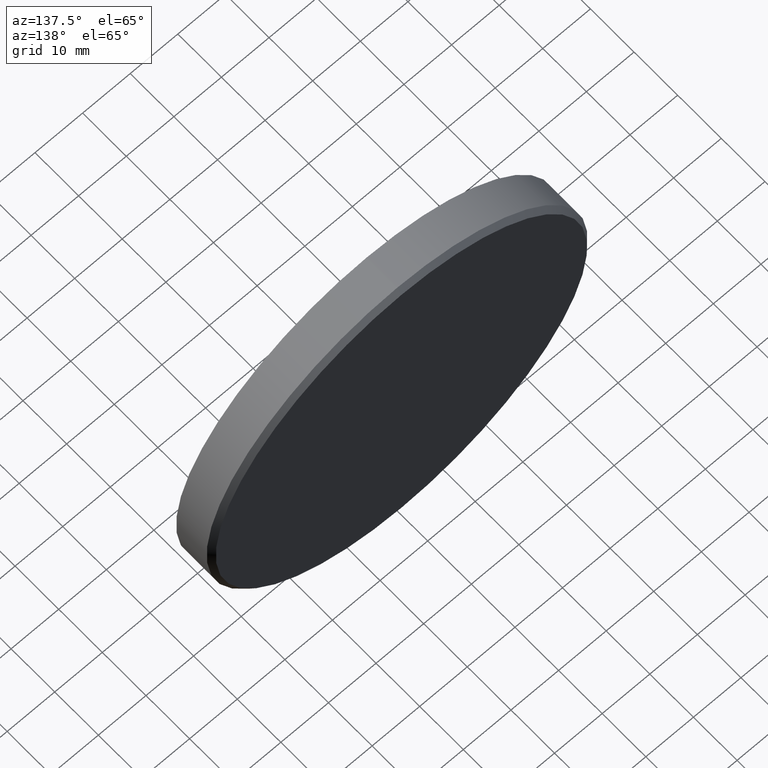
[diagram: clean part render]
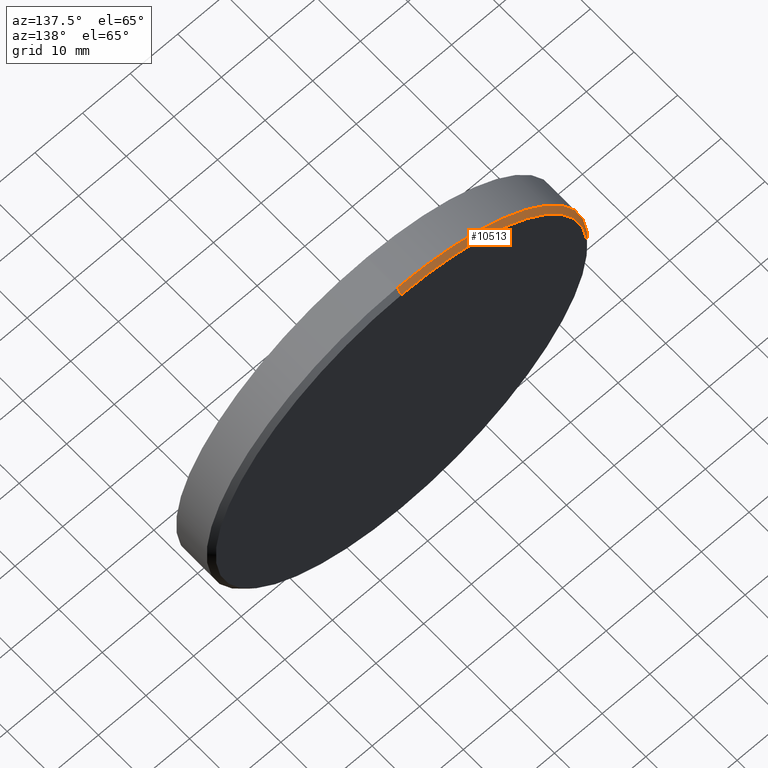
[diagram: same view with one face highlighted and labeled with its STEP entity id]
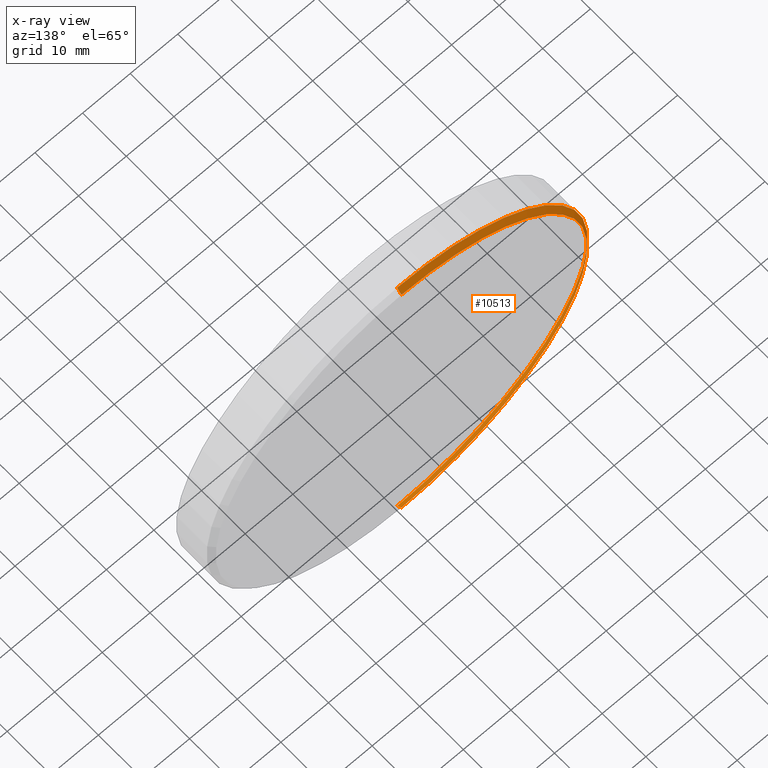
[diagram: x-ray of the same camera — body ghosted, the highlighted face saturated]
A machine part, auxiliary view. The second image highlights one B-rep face of the part: STEP entity #10513.
The next image is the same camera in x-ray: the body ghosted, the highlighted face saturated — about 0% of this face is hidden behind the body in this view.
In plain terms, the highlighted conical surface has half-angle 45 deg.
Its self-contained STEP definition (entity closure, byte-faithful):
#130 = CARTESIAN_POINT ( 'NONE',  ( 0.000000000000000000, 4.000000000000000000, 0.000000000000000000 ) ) ;
#144 = CARTESIAN_POINT ( 'NONE',  ( 0.000000000000000000, 3.000000000000006217, -40.00000000000000000 ) ) ;
#514 = DIRECTION ( 'NONE',  ( 0.000000000000000000, 0.000000000000000000, 1.000000000000000000 ) ) ;
#927 = VERTEX_POINT ( 'NONE', #144 ) ;
#1267 = EDGE_CURVE ( 'NONE', #7699, #927, #7515, .T. ) ;
#1878 = DIRECTION ( 'NONE',  ( 0.000000000000000000, -1.000000000000000000, 0.000000000000000000 ) ) ;
#2031 = CONICAL_SURFACE ( 'NONE', #9389, 39.00000000000003553, 0.7853981633974344012 ) ;
#2130 = VECTOR ( 'NONE', #2848, 999.9999999999998863 ) ;
#2466 = ORIENTED_EDGE ( 'NONE', *, *, #9304, .F. ) ;
#2848 = DIRECTION ( 'NONE',  ( 0.000000000000000000, -0.7071067811865574537, -0.7071067811865376918 ) ) ;
#3086 = FACE_OUTER_BOUND ( 'NONE', #3653, .T. ) ;
#3358 = CARTESIAN_POINT ( 'NONE',  ( 0.000000000000000000, 4.000000000000000000, 0.000000000000000000 ) ) ;
#3643 = EDGE_CURVE ( 'NONE', #4423, #9653, #9280, .T. ) ;
#3653 = EDGE_LOOP ( 'NONE', ( #2466, #11515, #16747, #6741 ) ) ;
#4423 = VERTEX_POINT ( 'NONE', #10004 ) ;
#5835 = CARTESIAN_POINT ( 'NONE',  ( 0.000000000000000000, 3.000000000000006217, 0.000000000000000000 ) ) ;
#5996 = DIRECTION ( 'NONE',  ( 0.000000000000000000, 0.000000000000000000, -1.000000000000000000 ) ) ;
#6593 = CARTESIAN_POINT ( 'NONE',  ( 4.837354856632047030E-15, 4.000000000000000000, 39.00000000000003553 ) ) ;
#6741 = ORIENTED_EDGE ( 'NONE', *, *, #1267, .F. ) ;
#7515 = CIRCLE ( 'NONE', #8580, 40.00000000000000000 ) ;
#7699 = VERTEX_POINT ( 'NONE', #14073 ) ;
#7981 = LINE ( 'NONE', #13156, #2130 ) ;
#8580 = AXIS2_PLACEMENT_3D ( 'NONE', #5835, #15229, #514 ) ;
#9280 = CIRCLE ( 'NONE', #14231, 39.00000000000003553 ) ;
#9304 = EDGE_CURVE ( 'NONE', #9653, #7699, #11694, .T. ) ;
#9389 = AXIS2_PLACEMENT_3D ( 'NONE', #3358, #1878, #5996 ) ;
#9592 = VECTOR ( 'NONE', #16516, 999.9999999999998863 ) ;
#9653 = VERTEX_POINT ( 'NONE', #6593 ) ;
#9946 = DIRECTION ( 'NONE',  ( 0.000000000000000000, 1.000000000000000000, 0.000000000000000000 ) ) ;
#10004 = CARTESIAN_POINT ( 'NONE',  ( 0.000000000000000000, 4.000000000000000000, -39.00000000000003553 ) ) ;
#10513 = ADVANCED_FACE ( 'NONE', ( #3086 ), #2031, .T. ) ;
#11515 = ORIENTED_EDGE ( 'NONE', *, *, #3643, .F. ) ;
#11694 = LINE ( 'NONE', #13759, #9592 ) ;
#12935 = EDGE_CURVE ( 'NONE', #4423, #927, #7981, .T. ) ;
#13156 = CARTESIAN_POINT ( 'NONE',  ( 0.000000000000000000, 4.000000000000000000, -39.00000000000003553 ) ) ;
#13759 = CARTESIAN_POINT ( 'NONE',  ( 4.776122516674681822E-15, 4.000000000000000000, 39.00000000000003553 ) ) ;
#14073 = CARTESIAN_POINT ( 'NONE',  ( 4.898587196589413026E-15, 3.000000000000006217, 40.00000000000000000 ) ) ;
#14231 = AXIS2_PLACEMENT_3D ( 'NONE', #130, #9946, #16712 ) ;
#15229 = DIRECTION ( 'NONE',  ( 0.000000000000000000, -1.000000000000000000, 0.000000000000000000 ) ) ;
#16516 = DIRECTION ( 'NONE',  ( 8.659560562354813296E-17, -0.7071067811865574537, 0.7071067811865376918 ) ) ;
#16712 = DIRECTION ( 'NONE',  ( 0.000000000000000000, 0.000000000000000000, 1.000000000000000000 ) ) ;
#16747 = ORIENTED_EDGE ( 'NONE', *, *, #12935, .T. ) ;